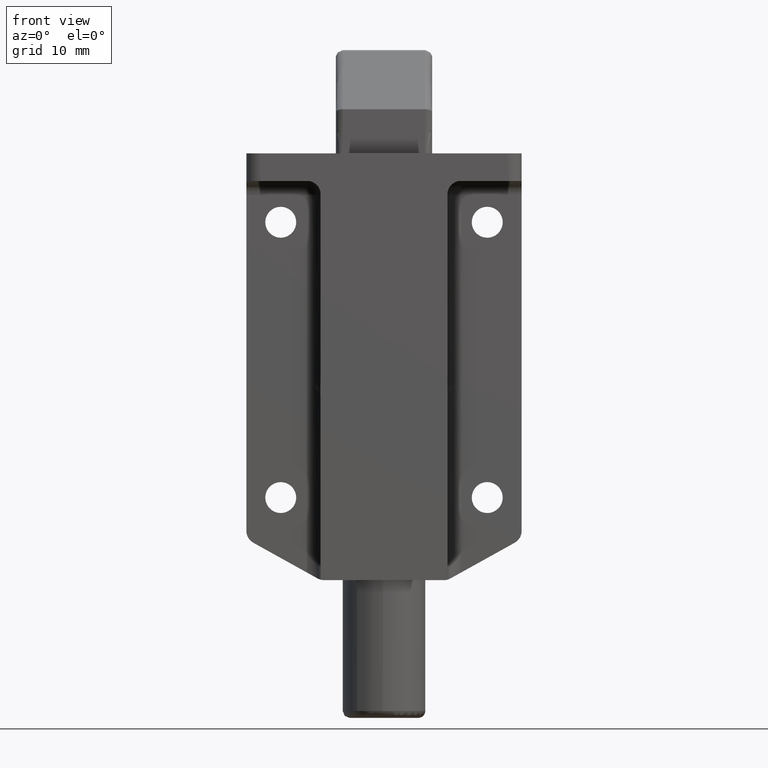
[diagram: clean part render]
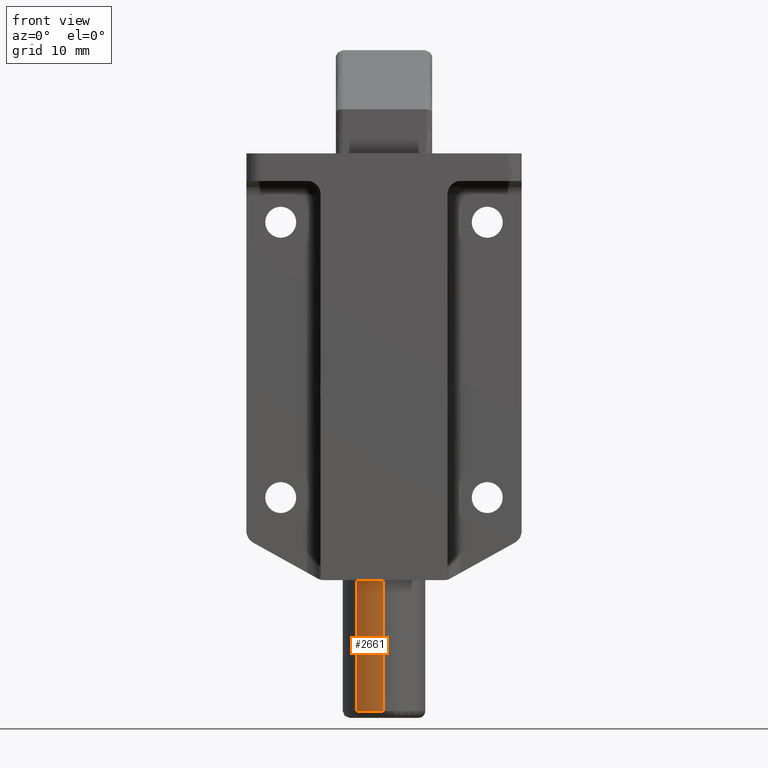
[diagram: same view with one face highlighted and labeled with its STEP entity id]
A machine part, front view. The second image highlights one B-rep face of the part: STEP entity #2661.
In plain terms, the highlighted face is a freeform B-spline surface patch.
Its self-contained STEP definition (entity closure, byte-faithful):
#2484=CARTESIAN_POINT('',(3.921221285777429,12.941368034849290,-62.000000000000007));
#2485=VERTEX_POINT('',#2484);
#2518=CARTESIAN_POINT('',(0.157061689942449,14.397943949850850,-62.0));
#2519=VERTEX_POINT('',#2518);
#2535=CARTESIAN_POINT('',(0.157061689912570,14.397943949851630,-80.999999999999986));
#2536=VERTEX_POINT('',#2535);
#2537=CARTESIAN_POINT('',(0.157061689942449,14.397943949850850,-62.0));
#2538=CARTESIAN_POINT('',(0.157061689912570,14.397943949851630,-80.999999999999986));
#2539=QUASI_UNIFORM_CURVE('',1,(#2537,#2538),.UNSPECIFIED.,.F.,.U.);
#2540=EDGE_CURVE('',#2519,#2536,#2539,.T.);
#2594=CARTESIAN_POINT('',(3.921222496979868,12.941366989043470,-81.0));
#2595=VERTEX_POINT('',#2594);
#2609=CARTESIAN_POINT('',(3.921221285777429,12.941368034849290,-62.000000000000007));
#2610=CARTESIAN_POINT('',(3.921222496979868,12.941366989043470,-81.0));
#2611=QUASI_UNIFORM_CURVE('',1,(#2609,#2610),.UNSPECIFIED.,.F.,.U.);
#2612=EDGE_CURVE('',#2485,#2595,#2611,.T.);
#2617=CARTESIAN_POINT('',(0.157061689847239,14.397943949853341,-61.524999999996922));
#2618=CARTESIAN_POINT('',(2.299254785139223,14.341848649473969,-61.524999999996922));
#2619=CARTESIAN_POINT('',(3.921224227828176,12.941365494550430,-61.524999999996915));
#2620=CARTESIAN_POINT('',(0.157061689847239,14.397943949853341,-81.486875000126162));
#2621=CARTESIAN_POINT('',(2.299254785139223,14.341848649473969,-81.486875000126162));
#2622=CARTESIAN_POINT('',(3.921224227828176,12.941365494550430,-81.486875000126147));
#2630=(BOUNDED_SURFACE()B_SPLINE_SURFACE(2,1,((#2617,#2620),(#2618,#2621),(#2619,#2622)),.UNSPECIFIED.,.F.,.F.,.U.)B_SPLINE_SURFACE_WITH_KNOTS((3,3),(2,2),(0.0,4.363314997064427),(0.0,19.961875000129250),.UNSPECIFIED.)GEOMETRIC_REPRESENTATION_ITEM()RATIONAL_B_SPLINE_SURFACE(((1.0,1.0),(0.871126983722081,0.871126983722081),(0.855662221768731,0.855662221768731)))REPRESENTATION_ITEM('')SURFACE());
#2631=CARTESIAN_POINT('',(0.157061689942449,14.397943949850852,-62.0));
#2632=CARTESIAN_POINT('',(2.299252594559174,14.341848706768277,-61.999999999999993));
#2633=CARTESIAN_POINT('',(3.921221285777430,12.941368034849287,-62.000000000000007));
#2641=(BOUNDED_CURVE()B_SPLINE_CURVE(2,(#2631,#2632,#2633),.UNSPECIFIED.,.F.,.U.)B_SPLINE_CURVE_WITH_KNOTS((3,3),(0.754603306664557,0.863957560515813),.UNSPECIFIED.)CURVE()GEOMETRIC_REPRESENTATION_ITEM()RATIONAL_B_SPLINE_CURVE((0.989412390635753,0.866013988511619,0.854696240904509))REPRESENTATION_ITEM(''));
#2642=EDGE_CURVE('',#2519,#2485,#2641,.T.);
#2643=ORIENTED_EDGE('',*,*,#2642,.T.);
#2644=ORIENTED_EDGE('',*,*,#2612,.T.);
#2645=CARTESIAN_POINT('',(3.921222496979868,12.941366989043466,-81.0));
#2646=CARTESIAN_POINT('',(2.299253496398900,14.341848683174126,-81.0));
#2647=CARTESIAN_POINT('',(0.157061689912570,14.397943949851630,-80.999999999999986));
#2655=(BOUNDED_CURVE()B_SPLINE_CURVE(2,(#2645,#2646,#2647),.UNSPECIFIED.,.F.,.U.)B_SPLINE_CURVE_WITH_KNOTS((3,3),(0.136042399187745,0.245396693337186),.UNSPECIFIED.)CURVE()GEOMETRIC_REPRESENTATION_ITEM()RATIONAL_B_SPLINE_CURVE((0.854696232563469,0.866013943040166,0.989412390639686))REPRESENTATION_ITEM(''));
#2656=EDGE_CURVE('',#2595,#2536,#2655,.T.);
#2657=ORIENTED_EDGE('',*,*,#2656,.T.);
#2658=ORIENTED_EDGE('',*,*,#2540,.F.);
#2659=EDGE_LOOP('',(#2643,#2644,#2657,#2658));
#2660=FACE_OUTER_BOUND('',#2659,.T.);
#2661=ADVANCED_FACE('',(#2660),#2630,.T.);